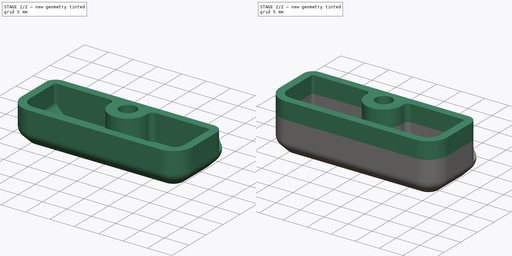
[diagram: build sequence overview — one tinted view per stage of 2, left to right]
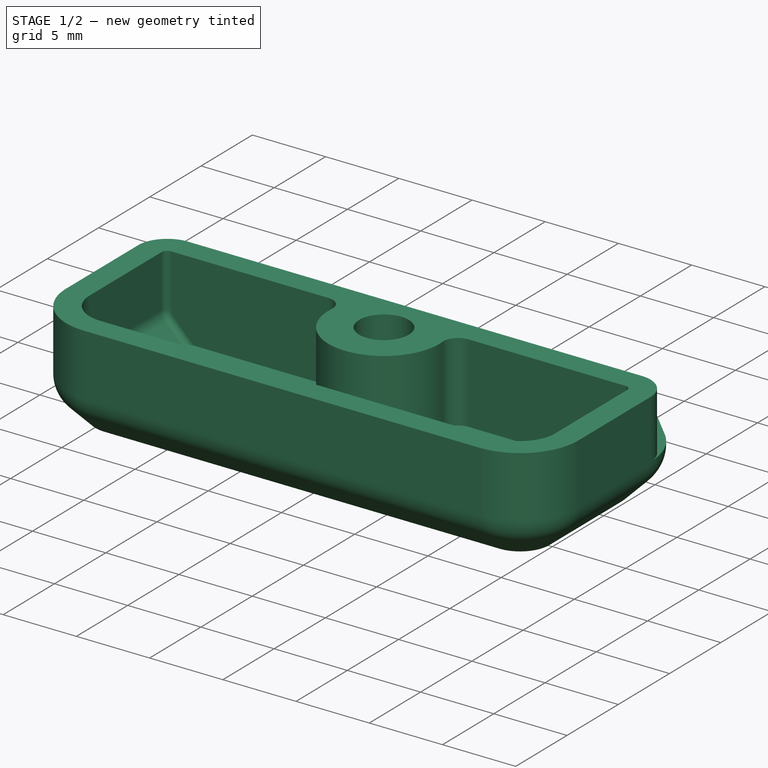
[diagram: stage 1 of 2 — iso view after this stage's code; geometry added in this stage tinted green]
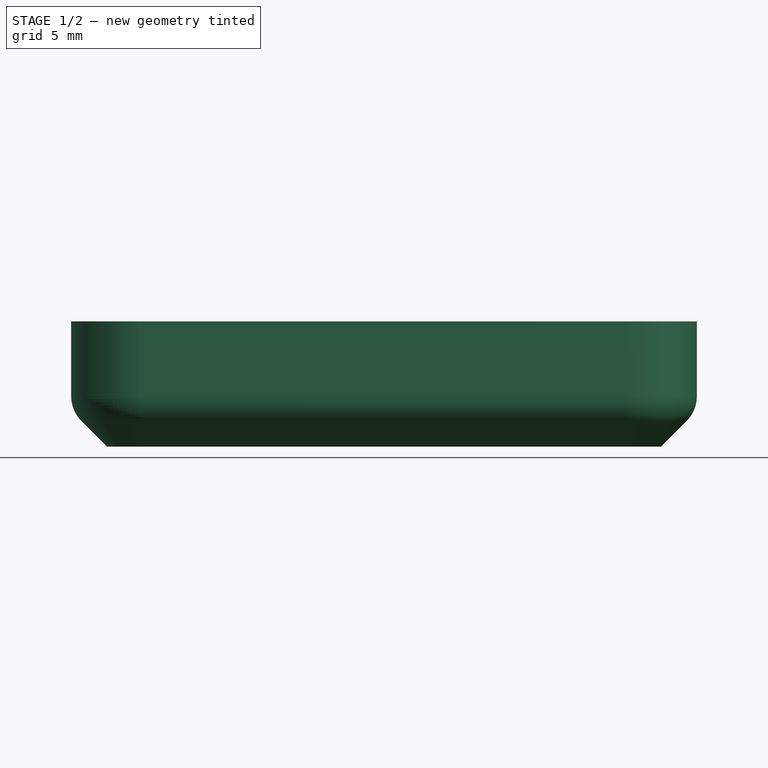
[diagram: stage 1 of 2 — front view after this stage's code; geometry added in this stage tinted green]
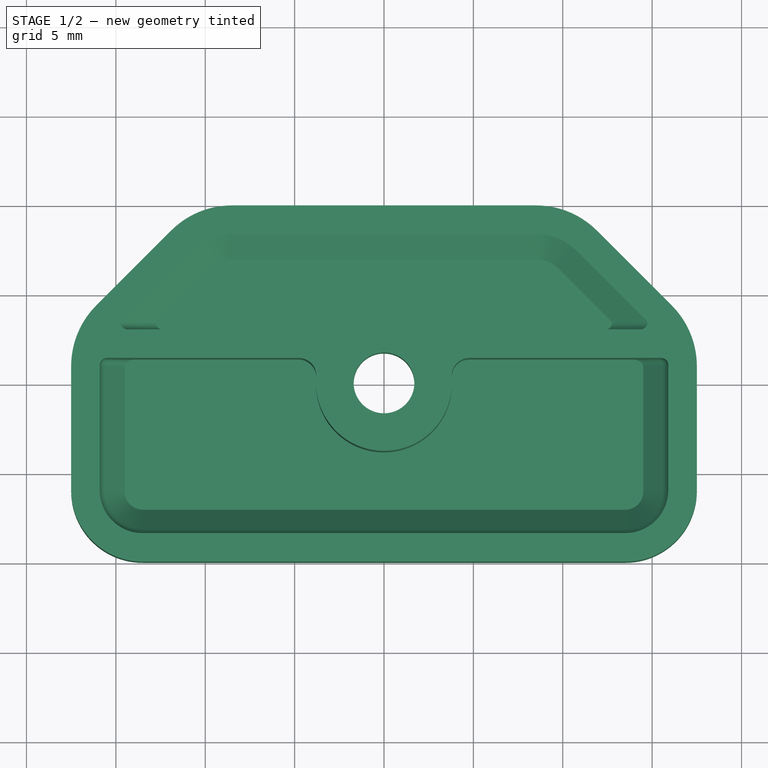
[diagram: stage 1 of 2 — top view after this stage's code; geometry added in this stage tinted green]
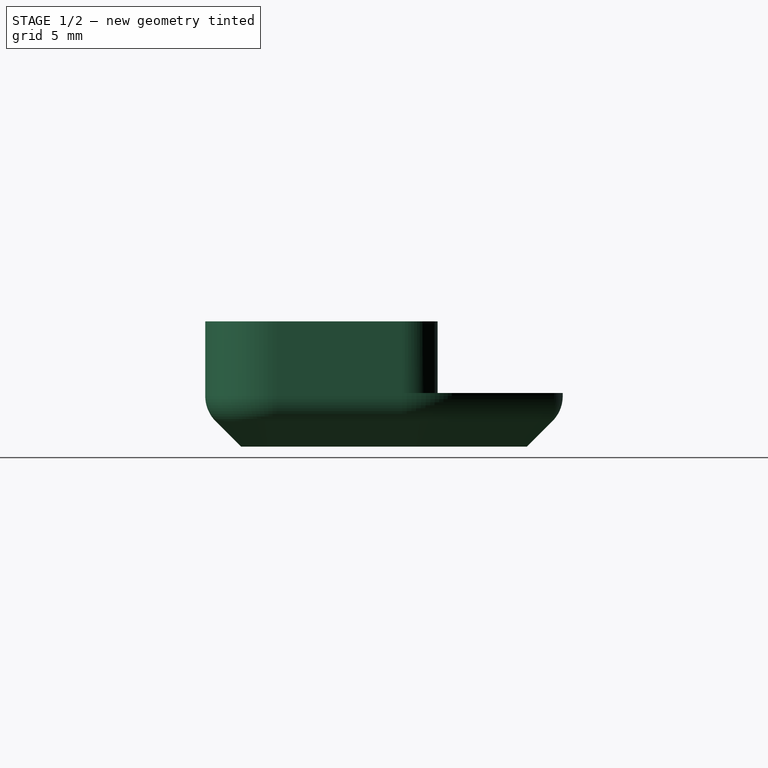
[diagram: stage 1 of 2 — right view after this stage's code; geometry added in this stage tinted green]
FCSTD DOCUMENT  (FreeCAD 1.0R39109 (Git))
Label: MidSpan_7p5
License: All rights reserved
LicenseURL: https://en.wikipedia.org/wiki/All_rights_reserved
objects: Part::Feature×1, Part::Refine×1, PartDesign::FeatureBase×1, Sketcher::SketchObject×1, PartDesign::Pad×1, PartDesign::Body×1
note: 10 computed .brp shape members not serialized (recipe doc carries the construction recipe); baked Part::Feature solids carry a one-line shape summary decoded from their .brp

FEATURE [Part::Feature] midspan_panel_clip_4mm_x008_solid  label="midspan_panel_clip_4mm_x008 (Solid)"
  shape: bbox 35 x 20 x 7 mm, 5978 faces (baked)
FEATURE [Part::Refine] midspan_panel_clip_4mm_x008_solid001  label="midspan_panel_clip_4mm_x008 (Solid)001"
  Source = -> midspan_panel_clip_4mm_x008_solid
FEATURE [PartDesign::FeatureBase] BaseFeature
  BaseFeature = -> midspan_panel_clip_4mm_x008_solid001
  Suppressed = false
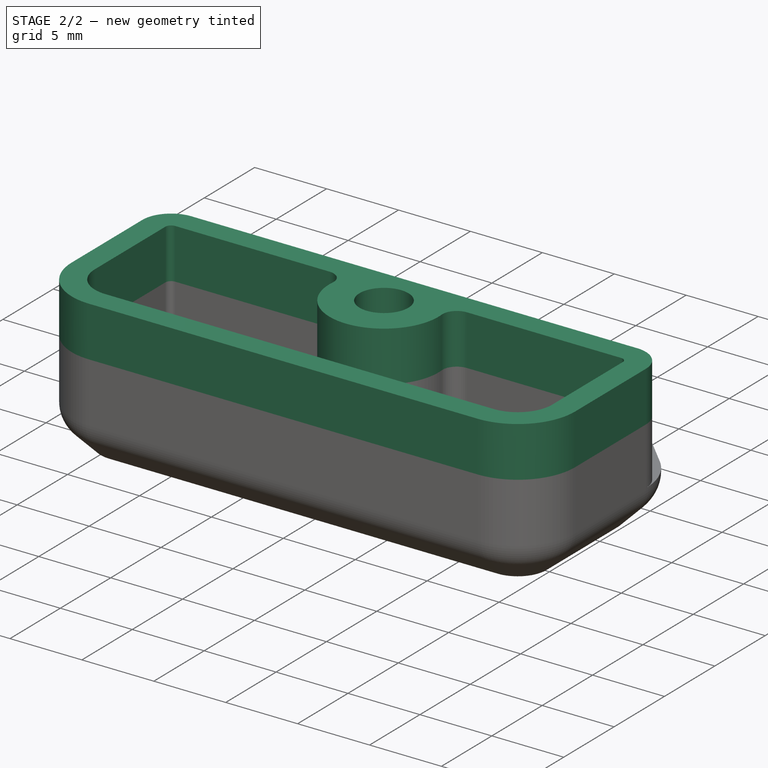
[diagram: stage 2 of 2 — iso view after this stage's code; geometry added in this stage tinted green]
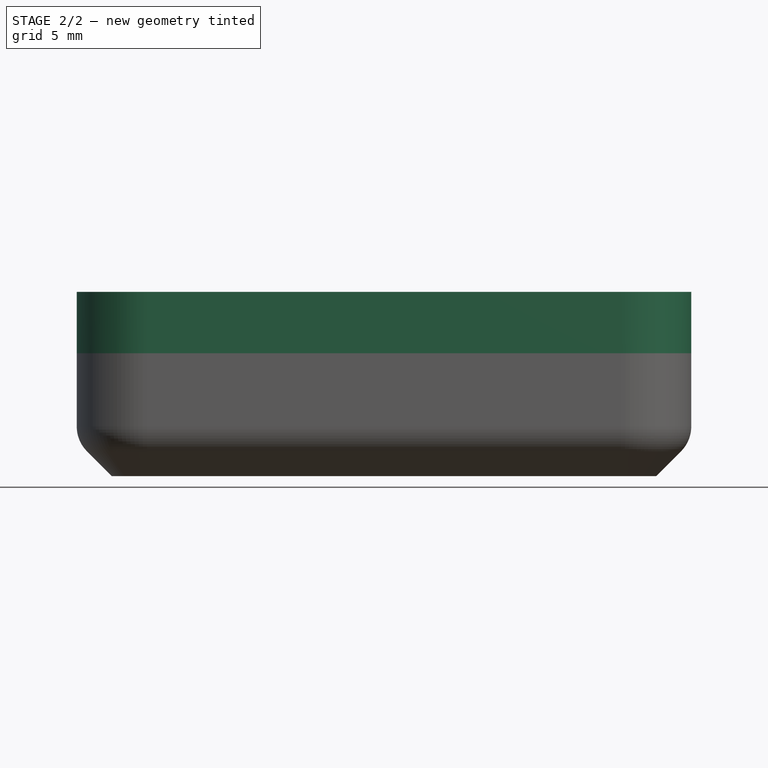
[diagram: stage 2 of 2 — front view after this stage's code; geometry added in this stage tinted green]
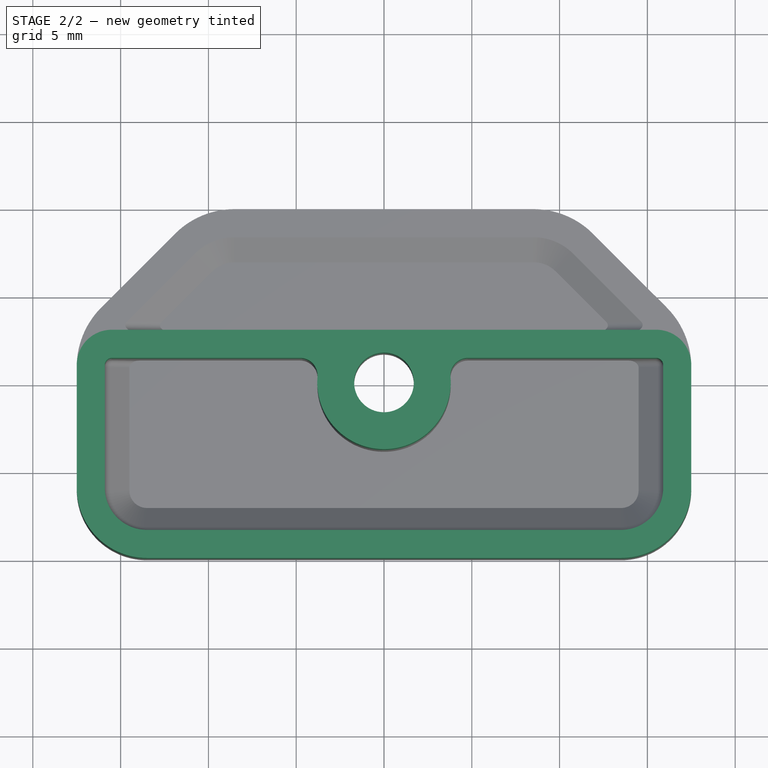
[diagram: stage 2 of 2 — top view after this stage's code; geometry added in this stage tinted green]
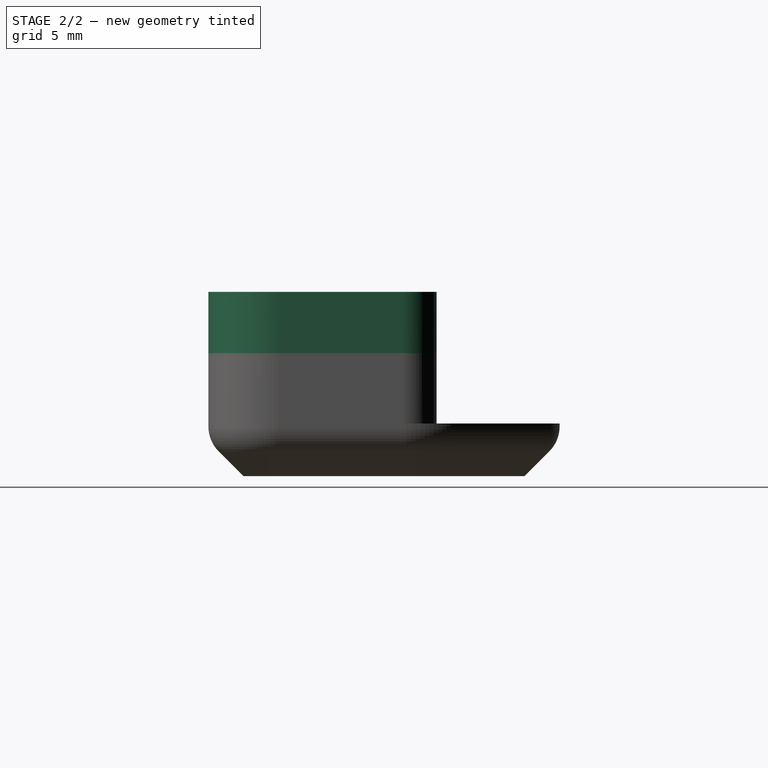
[diagram: stage 2 of 2 — right view after this stage's code; geometry added in this stage tinted green]
FEATURE [Sketcher::SketchObject] Sketch
  ArcFitTolerance = 1e-06
  AttachmentSupport = -> [BaseFeature]
  FullyConstrained = true
  MakeInternals = false
  MapMode = 5
  Placement = pos=(0,0,7) rot=(0,0,1;0rad)
  sketch-geometry (21):
    g0: Circle CenterX=125 CenterY=120 CenterZ=0 NormalX=0 NormalY=0 NormalZ=1 AngleXU=0 Radius=1.7
    g1: ArcOfCircle CenterX=111.5 CenterY=114 CenterZ=0 NormalX=0 NormalY=0 NormalZ=1 AngleXU=0 Radius=4 StartAngle=3.14159 EndAngle=4.71239
    g2: ArcOfCircle CenterX=111.5 CenterY=114 CenterZ=0 NormalX=0 NormalY=0 NormalZ=1 AngleXU=0 Radius=2.4 StartAngle=3.14159 EndAngle=4.71239
    g3: ArcOfCircle CenterX=138.5 CenterY=114 CenterZ=0 NormalX=0 NormalY=0 NormalZ=1 AngleXU=0 Radius=2.4 StartAngle=4.71239 EndAngle=6.28319
    g4: ArcOfCircle CenterX=138.5 CenterY=114 CenterZ=0 NormalX=0 NormalY=0 NormalZ=1 AngleXU=0 Radius=4 StartAngle=4.71239 EndAngle=6.28319
    g5: ArcOfCircle CenterX=140.5 CenterY=121 CenterZ=0 NormalX=0 NormalY=0 NormalZ=1 AngleXU=0 Radius=2 StartAngle=0 EndAngle=1.5708
    g6: ArcOfCircle CenterX=109.5 CenterY=121 CenterZ=0 NormalX=0 NormalY=0 NormalZ=1 AngleXU=0 Radius=2 StartAngle=1.5708 EndAngle=3.14159
    g7: LineSegment StartX=142.5 StartY=121 StartZ=0 EndX=142.5 EndY=114 EndZ=0
    g8: LineSegment StartX=140.5 StartY=123 StartZ=0 EndX=109.5 EndY=123 EndZ=0
    g9: LineSegment StartX=107.5 StartY=121 StartZ=0 EndX=107.5 EndY=114 EndZ=0
    g10: LineSegment StartX=111.5 StartY=110 StartZ=0 EndX=138.5 EndY=110 EndZ=0
    g11: LineSegment StartX=111.5 StartY=111.6 StartZ=0 EndX=138.5 EndY=111.6 EndZ=0
    g12: ArcOfCircle CenterX=109.5 CenterY=121 CenterZ=0 NormalX=0 NormalY=0 NormalZ=1 AngleXU=0 Radius=0.4 StartAngle=1.57081 EndAngle=3.14159
    g13: LineSegment StartX=109.1 StartY=121 StartZ=0 EndX=109.1 EndY=114 EndZ=0
    g14: ArcOfCircle CenterX=140.5 CenterY=121 CenterZ=0 NormalX=0 NormalY=0 NormalZ=1 AngleXU=0 Radius=0.4 StartAngle=8e-15 EndAngle=1.5708
    g15: LineSegment StartX=140.9 StartY=121 StartZ=0 EndX=140.9 EndY=114 EndZ=0
    g16: LineSegment StartX=109.5 StartY=121.4 StartZ=0 EndX=120.217 EndY=121.4 EndZ=0
    g17: ArcOfCircle CenterX=120.217 CenterY=120.4 CenterZ=0 NormalX=0 NormalY=0 NormalZ=1 AngleXU=0 Radius=1 StartAngle=6.19976 EndAngle=7.85398
    g18: ArcOfCircle CenterX=125 CenterY=120 CenterZ=0 NormalX=0 NormalY=0 NormalZ=1 AngleXU=0 Radius=3.8 StartAngle=3.05816 EndAngle=6.36662
    g19: ArcOfCircle CenterX=129.783 CenterY=120.4 CenterZ=0 NormalX=0 NormalY=0 NormalZ=1 AngleXU=0 Radius=1 StartAngle=1.5708 EndAngle=3.22502
    g20: LineSegment StartX=129.783 StartY=121.4 StartZ=0 EndX=140.5 EndY=121.4 EndZ=0
  constraints (51):
    c: Diameter(g0) = 3.4
    c: Coincident(g2,g1)
    c: Coincident(g4,g3)
    c: Horizontal(g1,g3)
    c: Horizontal(g5,g6)
    c: Vertical(g7)
    c: Coincident(g10,g1)
    c: Horizontal(g10)
    c: Tangent(g7,g5) = 1.5708
    c: Tangent(g7,g4) = 1.5708
    c: Tangent(g9,g1) = -1.5708
    c: Tangent(g9,g6) = -1.5708
    c: Vertical(g9)
    c: Tangent(g8,g6) = -1.5708
    c: Tangent(g8,g5) = -1.5708
    c: Tangent(g10,g4) = -1.5708
    c: Horizontal(g8)
    c: Radius(g5) = 2
    c: Radius(g1) = 4
    c: Equal(g1,g4)
    c: DistanceY(g1,g6) = 13
    c: DistanceX(g6,g5) = 35
    c: Horizontal(g11)
    c: Tangent(g11,g3) = -1.5708
    c: Tangent(g11,g2) = -1.5708
    c: Coincident(g12,g6)
    c: Radius(g12) = 0.4
    c: Vertical(g13)
    c: Tangent(g13,g2) = -1.5708
    c: Tangent(g13,g12) = -1.5708
    c: Coincident(g14,g5)
    c: Equal(g12,g14)
    c: Tangent(g15,g3) = 1.5708
    c: Tangent(g15,g14) = 1.5708
    c: Distance(g6,g-2) = 107.5
    c: Distance(g1,g-1) = 110
    c: Coincident(g16,g12)
    c: Horizontal(g16)
    c: Coincident(g18,g0)
    c: Horizontal(g20)
    c: Radius(g17) = 1
    c: Equal(g17,g19)
    c: Tangent(g17,g16) = 1.5708
    c: Tangent(g18,g17) = 1.5708
    c: Tangent(g19,g18) = 1.5708
    c: Tangent(g20,g19) = 1.5708
    c: Radius(g18) = 3.8
    c: DistanceX(g6,g0) = 17.5
    c: DistanceY(g0,g6) = 3
    c: Horizontal(g16,g19)
    c: Tangent(g20,g14) = 1.5708
FEATURE [PartDesign::Pad] Pad
  BaseFeature = -> BaseFeature
  Direction = (0,0,1)
  Length = 3.5
  Length2 = 10
  Profile = -> Sketch
  ReferenceAxis = -> Sketch [N_Axis]
  Refine = true
  Suppressed = false
  Type = 0
FEATURE [PartDesign::Body] Body
  AllowCompound = false
  BaseFeature = -> midspan_panel_clip_4mm_x008_solid001
  Group = -> [BaseFeature,Sketch,Pad]
  Origin = -> Origin
  Tip = -> Pad
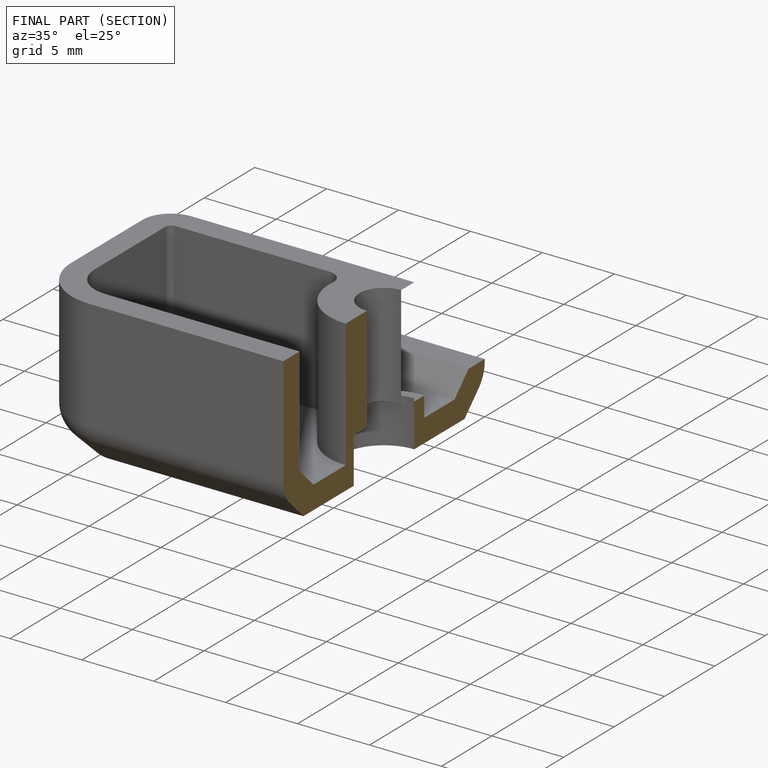
[diagram: finished part — half-section view (interior)]
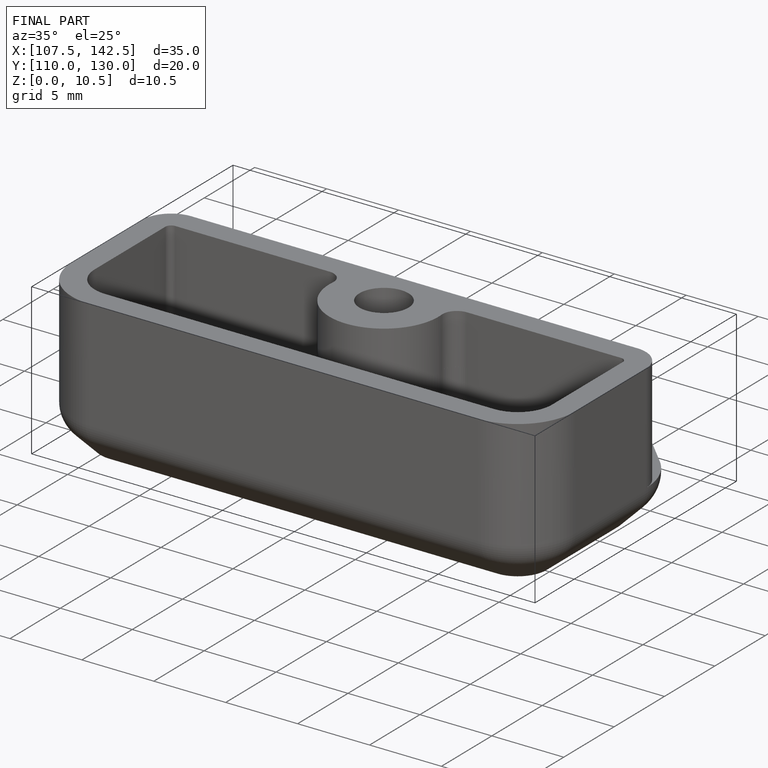
[diagram: finished part — iso view with bounding-box wireframe]
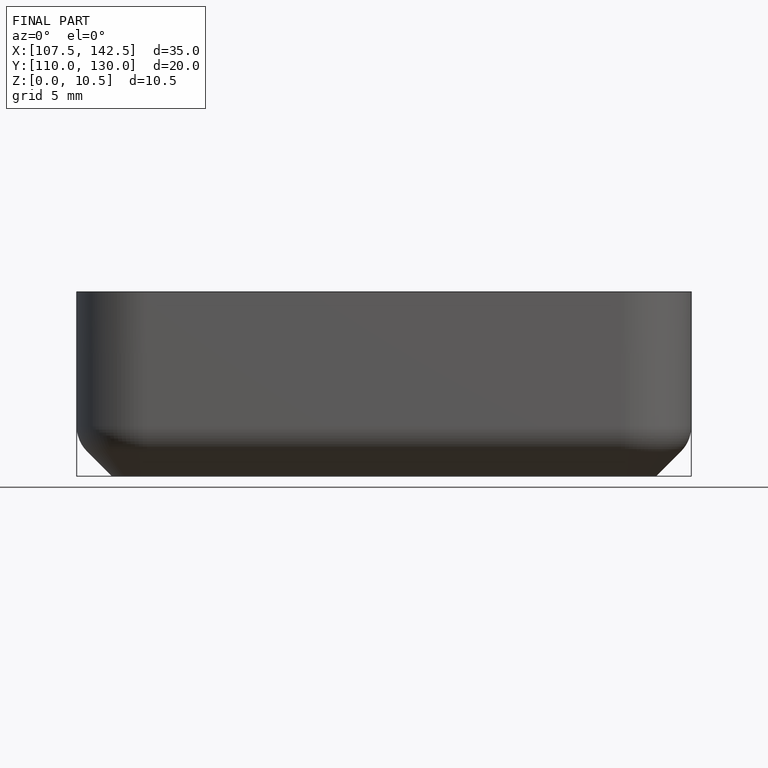
[diagram: finished part — front view with bounding-box wireframe]
